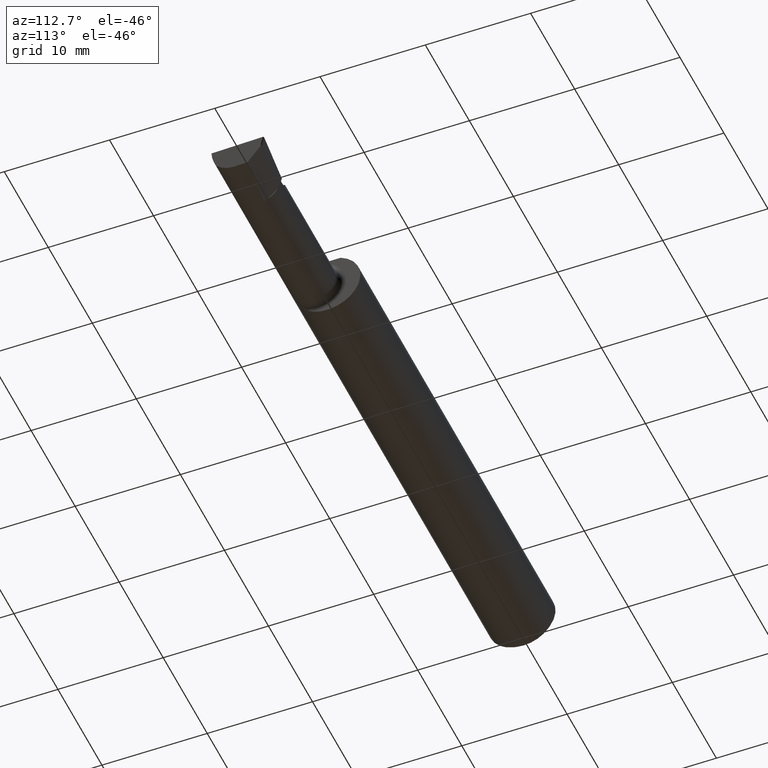
[diagram: clean part render]
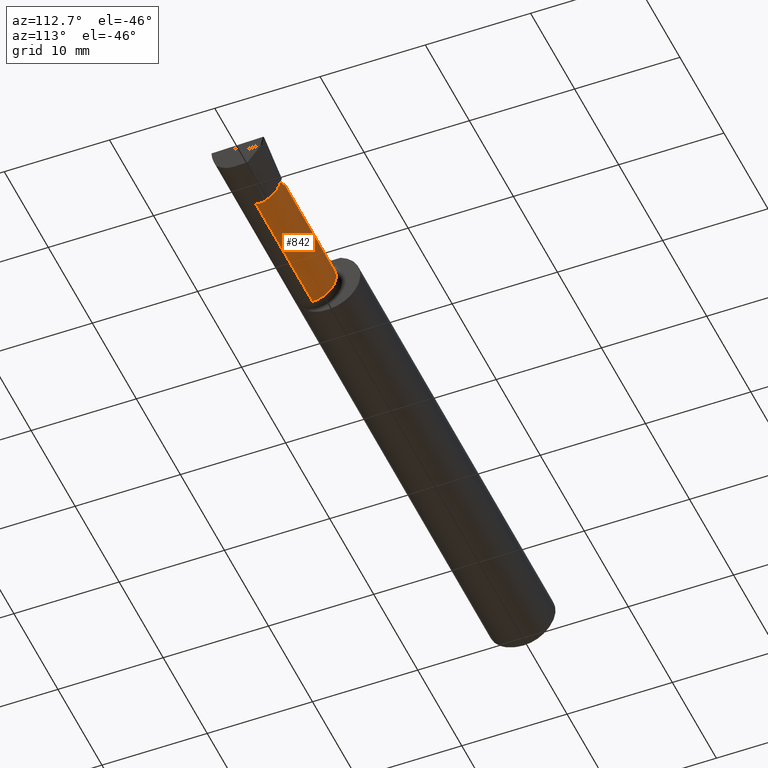
[diagram: same view with one face highlighted and labeled with its STEP entity id]
A machine part, auxiliary view. The second image highlights one B-rep face of the part: STEP entity #842.
In plain terms, the highlighted cylindrical surface (edge-blend (fillet) strip) has radius 2.2606 mm, axis along (-1, -0, -0).
Its self-contained STEP definition (entity closure, byte-faithful):
#13 = VERTEX_POINT ( 'NONE', #327 ) ;
#28 = LINE ( 'NONE', #949, #104 ) ;
#37 = B_SPLINE_CURVE_WITH_KNOTS ( 'NONE', 3,
 ( #1191, #88, #764, #290 ),
 .UNSPECIFIED., .F., .F.,
 ( 4, 4 ),
 ( 0.000000000000000000, 0.0001159281800398605754 ),
 .UNSPECIFIED. ) ;
#53 = CARTESIAN_POINT ( 'NONE',  ( 2.290000000000000036, -0.04385000000000000009, -0.08899999999999999578 ) ) ;
#71 = EDGE_CURVE ( 'NONE', #393, #674, #501, .T. ) ;
#88 = CARTESIAN_POINT ( 'NONE',  ( 1.784999999999999920, -0.04080726561575169498, 0.08896101634190878293 ) ) ;
#91 = VERTEX_POINT ( 'NONE', #703 ) ;
#104 = VECTOR ( 'NONE', #249, 39.37007874015748143 ) ;
#158 = VERTEX_POINT ( 'NONE', #967 ) ;
#187 = ORIENTED_EDGE ( 'NONE', *, *, #1087, .T. ) ;
#190 = LINE ( 'NONE', #1119, #225 ) ;
#194 = EDGE_CURVE ( 'NONE', #158, #393, #452, .T. ) ;
#220 = CARTESIAN_POINT ( 'NONE',  ( 1.784999999999999920, -0.04384999999999998621, -0.08899999999999999578 ) ) ;
#225 = VECTOR ( 'NONE', #617, 39.37007874015748143 ) ;
#249 = DIRECTION ( 'NONE',  ( 1.000000000000000000, 0.000000000000000000, 0.000000000000000000 ) ) ;
#256 = CARTESIAN_POINT ( 'NONE',  ( 2.171350000000000335, 0.008122574649202962682, 0.08900000000000000966 ) ) ;
#290 = CARTESIAN_POINT ( 'NONE',  ( 1.784999549995949897, -0.04385000000000000009, 0.08899999999999999578 ) ) ;
#292 = CIRCLE ( 'NONE', #1039, 0.08899999999999999578 ) ;
#327 = CARTESIAN_POINT ( 'NONE',  ( 2.288937985906247530, -0.002059794679488745426, -0.07857848776395173762 ) ) ;
#351 = DIRECTION ( 'NONE',  ( 0.000000000000000000, 0.000000000000000000, 1.000000000000000000 ) ) ;
#366 = ORIENTED_EDGE ( 'NONE', *, *, #952, .T. ) ;
#368 = CYLINDRICAL_SURFACE ( 'NONE', #517, 0.08899999999999999578 ) ;
#369 = CARTESIAN_POINT ( 'NONE',  ( 2.171350000000000335, -0.04385000000000000009, 0.08899999999999999578 ) ) ;
#384 = EDGE_CURVE ( 'NONE', #91, #674, #37, .T. ) ;
#387 = ORIENTED_EDGE ( 'NONE', *, *, #752, .T. ) ;
#393 = VERTEX_POINT ( 'NONE', #369 ) ;
#403 = CARTESIAN_POINT ( 'NONE',  ( 2.285242608473425641, 0.03631816732134428988, -0.03865313633247555863 ) ) ;
#405 = DIRECTION ( 'NONE',  ( -1.000000000000000000, -0.000000000000000000, -0.000000000000000000 ) ) ;
#437 = VERTEX_POINT ( 'NONE', #569 ) ;
#449 = CARTESIAN_POINT ( 'NONE',  ( 2.208027827235976570, 0.04494492526557257450, 0.05232217276402377493 ) ) ;
#452 =( BOUNDED_CURVE ( )  B_SPLINE_CURVE ( 3, ( #1185, #449, #256, #749 ),
 .UNSPECIFIED., .F., .T. ) 
 B_SPLINE_CURVE_WITH_KNOTS ( ( 4, 4 ),
 ( 4.716321574790804050, 6.283185307179586232 ),
 .UNSPECIFIED. ) 
 CURVE ( )  GEOMETRIC_REPRESENTATION_ITEM ( )  RATIONAL_B_SPLINE_CURVE ( ( 1.000000000000000000, 0.8056638636166330025, 0.8056638636166330025, 1.000000000000000000 ) ) 
 REPRESENTATION_ITEM ( '' )  );
#459 = DIRECTION ( 'NONE',  ( -1.000000000000000000, -0.000000000000000000, -0.000000000000000000 ) ) ;
#490 = CARTESIAN_POINT ( 'NONE',  ( 1.784999999999999920, -0.04385000000000000009, 0.000000000000000000 ) ) ;
#496 = CIRCLE ( 'NONE', #793, 0.08899999999999999578 ) ;
#501 = LINE ( 'NONE', #1235, #523 ) ;
#511 = CARTESIAN_POINT ( 'NONE',  ( 2.290000000000000036, -0.001847796191672966852, -0.07846537373417498962 ) ) ;
#517 = AXIS2_PLACEMENT_3D ( 'NONE', #1093, #459, #1314 ) ;
#523 = VECTOR ( 'NONE', #405, 39.37007874015748143 ) ;
#532 = DIRECTION ( 'NONE',  ( -1.000000000000000000, -0.000000000000000000, -0.000000000000000000 ) ) ;
#569 = CARTESIAN_POINT ( 'NONE',  ( 2.290000000000000036, 0.04514999999999999569, -3.414809992080329023E-17 ) ) ;
#591 = CARTESIAN_POINT ( 'NONE',  ( 2.288443222880010008, 0.03600902606772962006, -0.03928945244276216275 ) ) ;
#617 = DIRECTION ( 'NONE',  ( -1.000000000000000000, -0.000000000000000000, -0.000000000000000000 ) ) ;
#632 = CARTESIAN_POINT ( 'NONE',  ( 2.290000000000000036, -0.04385000000000000009, 0.000000000000000000 ) ) ;
#638 = DIRECTION ( 'NONE',  ( 0.000000000000000000, 0.000000000000000000, 1.000000000000000000 ) ) ;
#643 = VERTEX_POINT ( 'NONE', #511 ) ;
#646 = EDGE_CURVE ( 'NONE', #643, #13, #941, .T. ) ;
#656 = CARTESIAN_POINT ( 'NONE',  ( 2.289293480241941126, -0.001989077639623209118, -0.07854087849327556770 ) ) ;
#659 = EDGE_CURVE ( 'NONE', #643, #730, #292, .T. ) ;
#670 = DIRECTION ( 'NONE',  ( 0.000000000000000000, 0.000000000000000000, 1.000000000000000000 ) ) ;
#674 = VERTEX_POINT ( 'NONE', #1250 ) ;
#700 = EDGE_LOOP ( 'NONE', ( #802, #932, #187, #1304, #737, #1246, #887, #387, #366, #1132, #1274, #1052 ) ) ;
#701 = CARTESIAN_POINT ( 'NONE',  ( 2.285242608473425641, 0.03631816732134428988, -0.03865313633247555863 ) ) ;
#703 = CARTESIAN_POINT ( 'NONE',  ( 1.784999999999999920, -0.03928589842362753548, 0.08888289473684209130 ) ) ;
#725 = CIRCLE ( 'NONE', #908, 0.08899999999999999578 ) ;
#730 = VERTEX_POINT ( 'NONE', #53 ) ;
#737 = ORIENTED_EDGE ( 'NONE', *, *, #71, .F. ) ;
#749 = CARTESIAN_POINT ( 'NONE',  ( 2.171350000000000335, -0.04385000000000000009, 0.08899999999999999578 ) ) ;
#752 = EDGE_CURVE ( 'NONE', #1297, #437, #28, .T. ) ;
#764 = CARTESIAN_POINT ( 'NONE',  ( 1.784999549995949897, -0.04232863280787584059, 0.08899999999999999578 ) ) ;
#768 = EDGE_CURVE ( 'NONE', #158, #1297, #816, .T. ) ;
#775 = CARTESIAN_POINT ( 'NONE',  ( 2.288937985906247530, -0.002059794679488745426, -0.07857848776395173762 ) ) ;
#793 = AXIS2_PLACEMENT_3D ( 'NONE', #1199, #1293, #670 ) ;
#802 = ORIENTED_EDGE ( 'NONE', *, *, #659, .T. ) ;
#814 =( BOUNDED_CURVE ( )  B_SPLINE_CURVE ( 3, ( #701, #1111, #591, #819 ),
 .UNSPECIFIED., .F., .T. ) 
 B_SPLINE_CURVE_WITH_KNOTS ( ( 4, 4 ),
 ( 2.820608254191869335, 2.832531324869317135 ),
 .UNSPECIFIED. ) 
 CURVE ( )  GEOMETRIC_REPRESENTATION_ITEM ( )  RATIONAL_B_SPLINE_CURVE ( ( 1.000000000000000000, 0.9999881534005539141, 0.9999881534005539141, 1.000000000000000000 ) ) 
 REPRESENTATION_ITEM ( '' )  );
#816 = CIRCLE ( 'NONE', #1102, 0.08899999999999999578 ) ;
#819 = CARTESIAN_POINT ( 'NONE',  ( 2.290000000000000036, 0.03585161589387594189, -0.03960621698553223186 ) ) ;
#842 = ADVANCED_FACE ( 'NONE', ( #1213 ), #368, .T. ) ;
#869 = CARTESIAN_POINT ( 'NONE',  ( 2.260000000000000231, 0.04514999999999997488, -3.414809992080329023E-17 ) ) ;
#871 = CARTESIAN_POINT ( 'NONE',  ( 2.290000000000000036, 0.03585161589387594189, -0.03960621698553223186 ) ) ;
#887 = ORIENTED_EDGE ( 'NONE', *, *, #768, .T. ) ;
#908 = AXIS2_PLACEMENT_3D ( 'NONE', #490, #1009, #1133 ) ;
#909 = VERTEX_POINT ( 'NONE', #871 ) ;
#928 = CARTESIAN_POINT ( 'NONE',  ( 2.285242608473425641, 0.03631816732134428988, -0.03865313633247555863 ) ) ;
#932 = ORIENTED_EDGE ( 'NONE', *, *, #1029, .T. ) ;
#941 =( BOUNDED_CURVE ( )  B_SPLINE_CURVE ( 3, ( #1271, #944, #656, #965 ),
 .UNSPECIFIED., .F., .T. ) 
 B_SPLINE_CURVE_WITH_KNOTS ( ( 4, 4 ),
 ( 3.450653982310268653, 3.453353844081592072 ),
 .UNSPECIFIED. ) 
 CURVE ( )  GEOMETRIC_REPRESENTATION_ITEM ( )  RATIONAL_B_SPLINE_CURVE ( ( 1.000000000000000000, 0.9999993925622936430, 0.9999993925622936430, 1.000000000000000000 ) ) 
 REPRESENTATION_ITEM ( '' )  );
#944 = CARTESIAN_POINT ( 'NONE',  ( 2.289647485154894468, -0.001918411434092623900, -0.07850317379378003724 ) ) ;
#949 = CARTESIAN_POINT ( 'NONE',  ( 1.760000000000000009, 0.04514999999999999569, -3.414809992080329023E-17 ) ) ;
#952 = EDGE_CURVE ( 'NONE', #437, #909, #496, .T. ) ;
#960 = EDGE_CURVE ( 'NONE', #13, #995, #1005, .T. ) ;
#965 = CARTESIAN_POINT ( 'NONE',  ( 2.288937985906247530, -0.002059794679488745426, -0.07857848776395173762 ) ) ;
#967 = CARTESIAN_POINT ( 'NONE',  ( 2.260000000000000231, 0.04514931179509204529, 0.0003499999999999638925 ) ) ;
#995 = VERTEX_POINT ( 'NONE', #403 ) ;
#1005 =( BOUNDED_CURVE ( )  B_SPLINE_CURVE ( 3, ( #775, #1233, #1320, #928 ),
 .UNSPECIFIED., .F., .T. ) 
 B_SPLINE_CURVE_WITH_KNOTS ( ( 4, 4 ),
 ( 4.414898696640120690, 5.047644286529844315 ),
 .UNSPECIFIED. ) 
 CURVE ( )  GEOMETRIC_REPRESENTATION_ITEM ( )  RATIONAL_B_SPLINE_CURVE ( ( 1.000000000000000000, 0.9669134457620006673, 0.9669134457620006673, 1.000000000000000000 ) ) 
 REPRESENTATION_ITEM ( '' )  );
#1009 = DIRECTION ( 'NONE',  ( 1.000000000000000000, 0.000000000000000000, 0.000000000000000000 ) ) ;
#1029 = EDGE_CURVE ( 'NONE', #730, #1225, #190, .T. ) ;
#1039 = AXIS2_PLACEMENT_3D ( 'NONE', #632, #532, #351 ) ;
#1052 = ORIENTED_EDGE ( 'NONE', *, *, #646, .F. ) ;
#1078 = EDGE_CURVE ( 'NONE', #995, #909, #814, .T. ) ;
#1087 = EDGE_CURVE ( 'NONE', #1225, #91, #725, .T. ) ;
#1093 = CARTESIAN_POINT ( 'NONE',  ( 1.760000000000000009, -0.04385000000000000009, 0.000000000000000000 ) ) ;
#1102 = AXIS2_PLACEMENT_3D ( 'NONE', #1279, #1152, #638 ) ;
#1111 = CARTESIAN_POINT ( 'NONE',  ( 2.286857406917958802, 0.03616454505259017460, -0.03897175512811047043 ) ) ;
#1119 = CARTESIAN_POINT ( 'NONE',  ( 1.760000000000000009, -0.04384999999999998621, -0.08899999999999999578 ) ) ;
#1132 = ORIENTED_EDGE ( 'NONE', *, *, #1078, .F. ) ;
#1133 = DIRECTION ( 'NONE',  ( 0.000000000000000000, 0.000000000000000000, -1.000000000000000000 ) ) ;
#1152 = DIRECTION ( 'NONE',  ( -1.000000000000000000, -0.000000000000000000, -0.000000000000000000 ) ) ;
#1185 = CARTESIAN_POINT ( 'NONE',  ( 2.260000000000000231, 0.04514931179509204529, 0.0003499999999999638925 ) ) ;
#1191 = CARTESIAN_POINT ( 'NONE',  ( 1.784999999999999920, -0.03928589842362753548, 0.08888289473684209130 ) ) ;
#1199 = CARTESIAN_POINT ( 'NONE',  ( 2.290000000000000036, -0.04385000000000000009, 0.000000000000000000 ) ) ;
#1213 = FACE_OUTER_BOUND ( 'NONE', #700, .T. ) ;
#1225 = VERTEX_POINT ( 'NONE', #220 ) ;
#1233 = CARTESIAN_POINT ( 'NONE',  ( 2.287719783628060277, 0.01479621339370657158, -0.06961399813952577620 ) ) ;
#1235 = CARTESIAN_POINT ( 'NONE',  ( 1.760000000000000009, -0.04385000000000000009, 0.08899999999999999578 ) ) ;
#1246 = ORIENTED_EDGE ( 'NONE', *, *, #194, .F. ) ;
#1250 = CARTESIAN_POINT ( 'NONE',  ( 1.784999549995949897, -0.04385000000000000009, 0.08899999999999999578 ) ) ;
#1271 = CARTESIAN_POINT ( 'NONE',  ( 2.290000000000000036, -0.001847796191672966852, -0.07846537373417498962 ) ) ;
#1274 = ORIENTED_EDGE ( 'NONE', *, *, #960, .F. ) ;
#1279 = CARTESIAN_POINT ( 'NONE',  ( 2.260000000000000231, -0.04385000000000000009, 0.000000000000000000 ) ) ;
#1293 = DIRECTION ( 'NONE',  ( -1.000000000000000000, -0.000000000000000000, -0.000000000000000000 ) ) ;
#1297 = VERTEX_POINT ( 'NONE', #869 ) ;
#1304 = ORIENTED_EDGE ( 'NONE', *, *, #384, .T. ) ;
#1314 = DIRECTION ( 'NONE',  ( 0.000000000000000000, 0.000000000000000000, 1.000000000000000000 ) ) ;
#1320 = CARTESIAN_POINT ( 'NONE',  ( 2.286445840771017313, 0.02802661582150205513, -0.05585014933228257122 ) ) ;